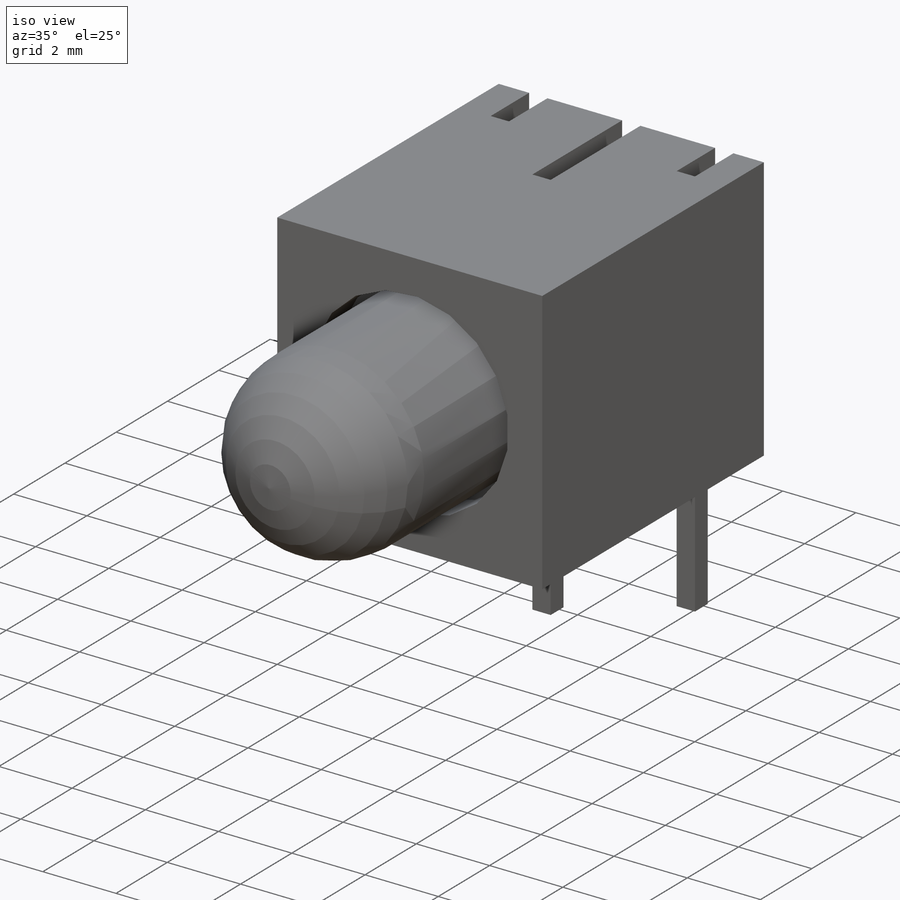
[diagram: iso view]
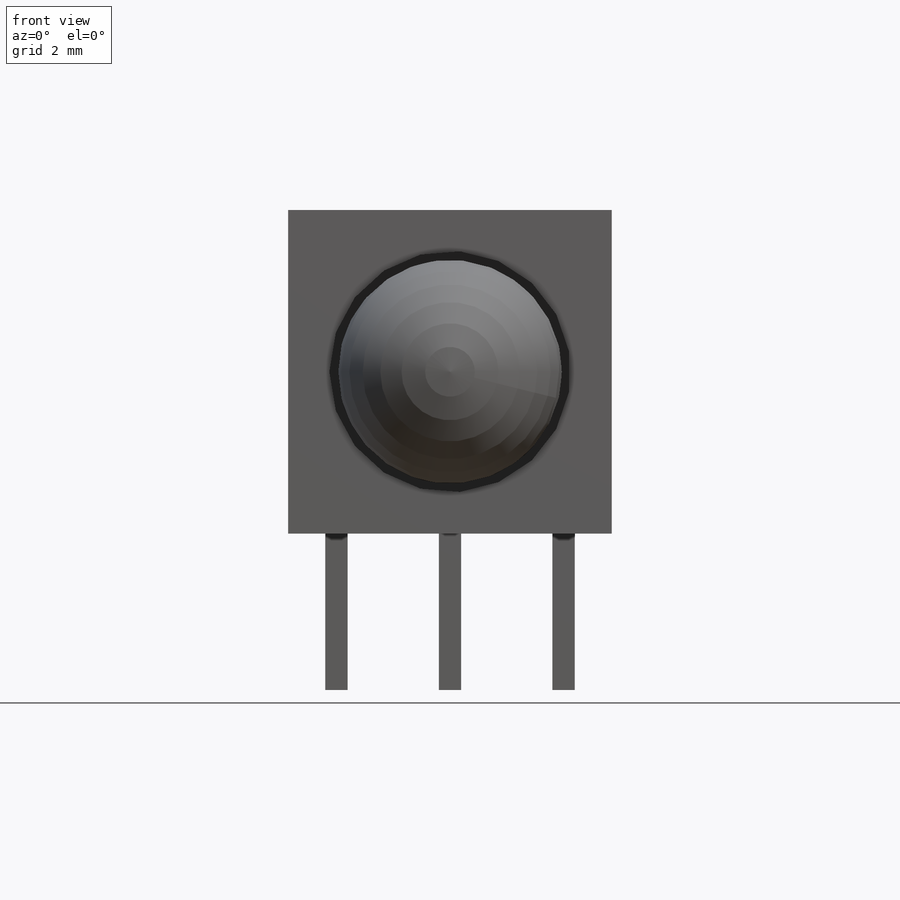
[diagram: front view]
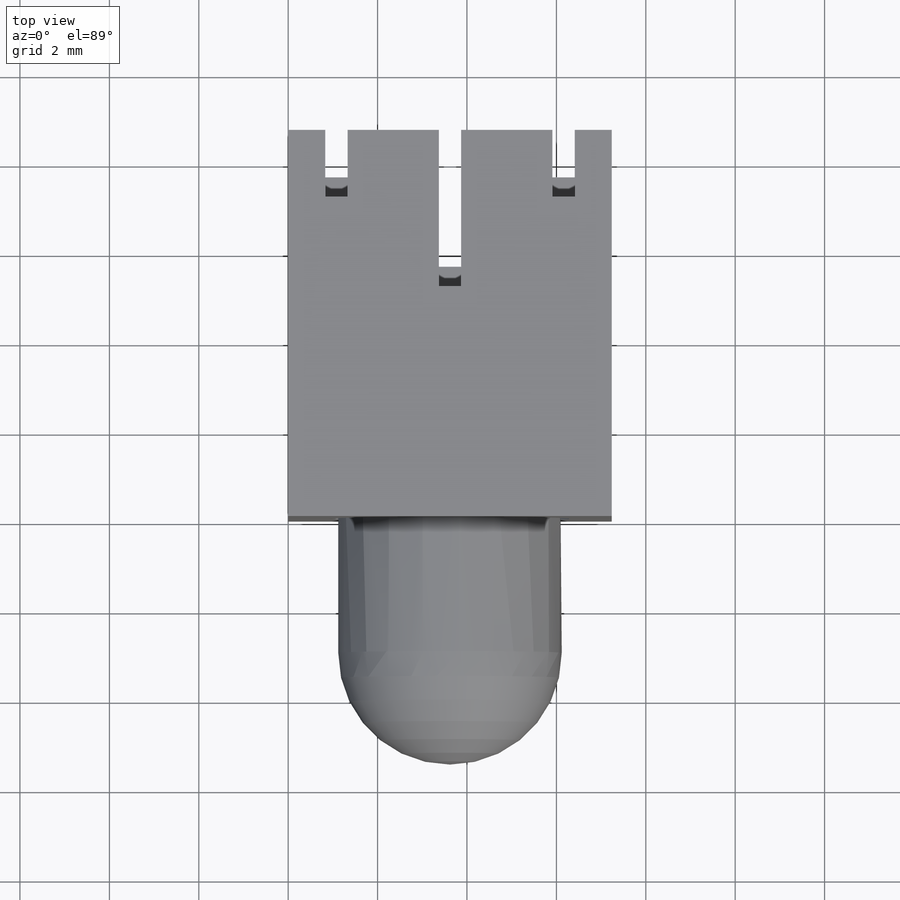
[diagram: top view]
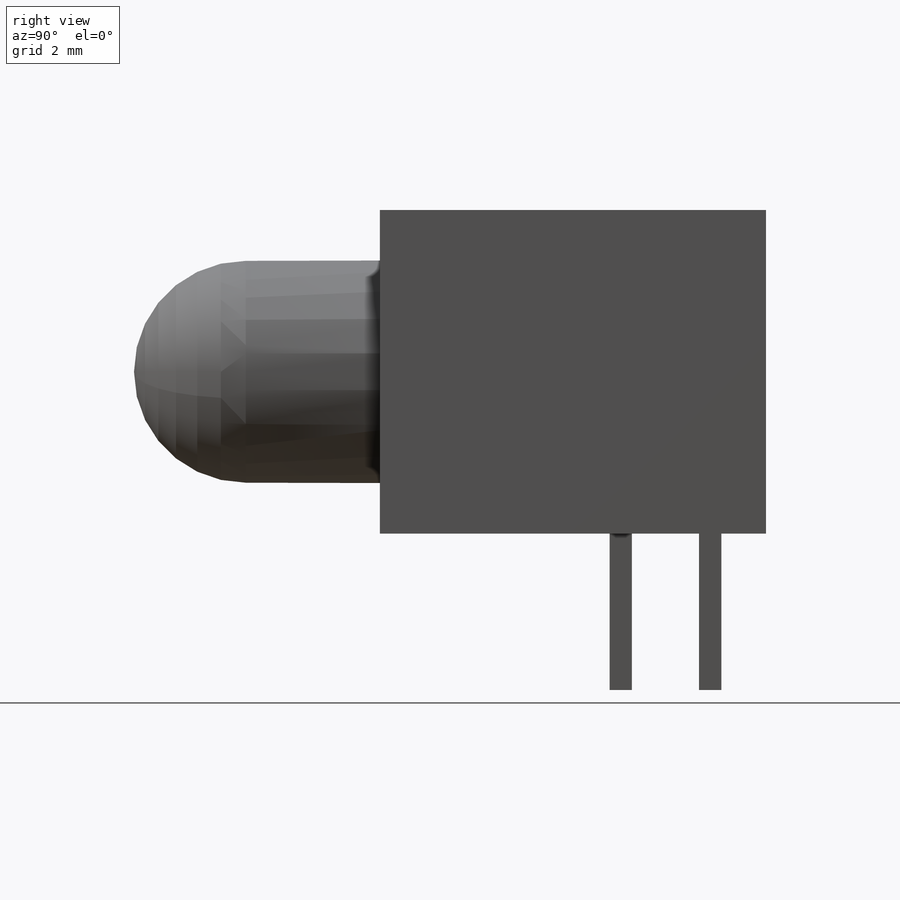
[diagram: right view]
SOLIDWORKS PART (.sldprt)
format: sldprt  version: not decoded by parser v0  size: 750,592 bytes
history: native  units: mm
features: sketch x7, extrude x3, cut_extrude x2, material x1, plane x1, revolve x1, cut_revolve x1 (+12 scaffold rows collapsed)
feature tree (28):
  scaffold x12  (default folders/planes/origin — collapsed)
  material  "Material <not specified>"
  sketch  "Sketch1"  dims[D1=7.24mm D2=7.24mm]
  extrude  "Extrude1"  Depth=8.64mm
  plane  "Plane1"  Offset=3.62mm
  sketch  "Sketch3"  dims[D1=5.5mm D2=2.5mm D3=0.2mm D4=1.0mm]
  revolve  "Revolve1"  Angle=360deg
  sketch  "Sketch5"  dims[D1=0.5mm D2=1.5mm D3=0.5mm D4=3.5mm D5=0.5mm D6=0.5mm D7=2.54mm D8=2.54mm]
  cut_extrude  "Cut-Extrude1"  [1 undecoded]
  extrude  "Extrude2"  [1 undecoded]
  sketch  "Sketch5<9>"  dims[D1=3.5mm]
  extrude  "Extrude3"  [1 undecoded]
  sketch  "Sketch5<14>"
  cut_revolve  "Cut-Revolve1"  [1 undecoded]
  sketch  "Sketch3<3>"  dims[D1=360.0deg]
  sketch  "Sketch6"
  cut_extrude  "Cut-Extrude2"  Depth=0.01mm
decode coverage: 8 of 14 modeling features carry decoded parameters
note: 4 parameter values undecoded
summary: no parameter record found for 4 features
note: suppression state not decoded; provenance and decode notes live in map.json
